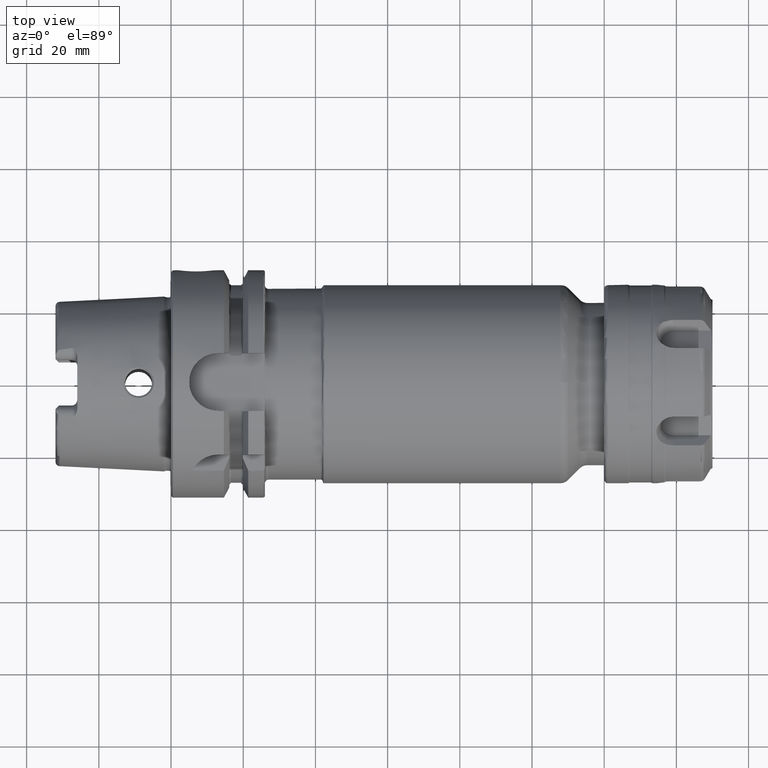
[diagram: clean part render]
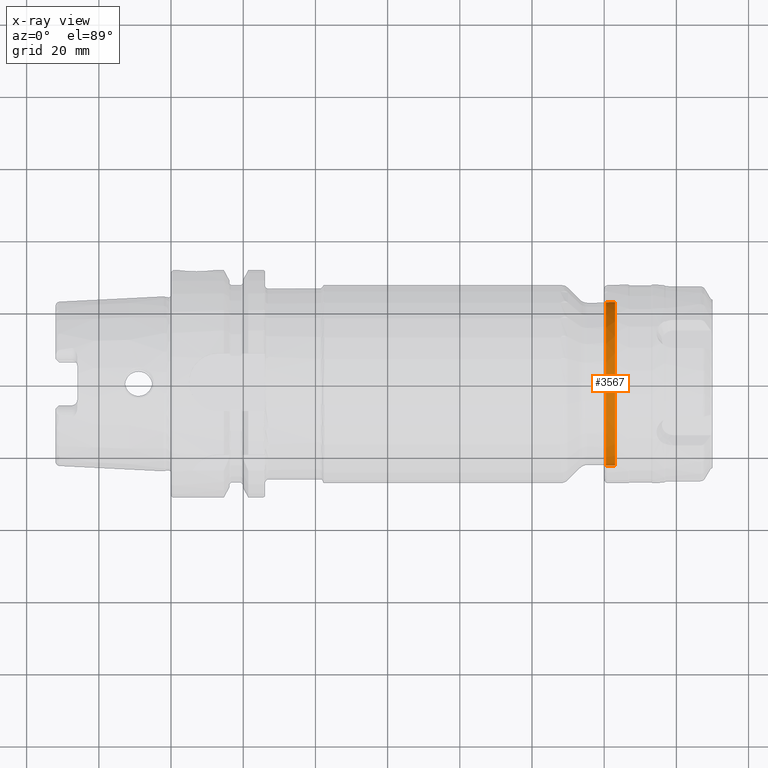
[diagram: x-ray — body ghosted, one internal face saturated and labeled with its STEP entity id]
A machine part, top view, then the same camera in x-ray: the body is ghosted and one INTERNAL B-rep face — a face not visible from any outside direction — is saturated and labeled: STEP entity #3567.
In plain terms, the highlighted cylindrical surface (bore or boss wall) has radius 22.7 mm, axis along (1, 0, 0).
Its self-contained STEP definition (entity closure, byte-faithful):
#354=CYLINDRICAL_SURFACE('',#4029,22.7);
#541=FACE_OUTER_BOUND('',#756,.T.);
#756=EDGE_LOOP('',(#3223,#3224,#3225,#3226,#3227));
#943=LINE('',#7471,#1111);
#1111=VECTOR('',#4992,22.7);
#1310=CIRCLE('',#4025,22.7);
#1311=CIRCLE('',#4026,22.7);
#1313=CIRCLE('',#4030,22.7);
#1672=VERTEX_POINT('',#7460);
#1673=VERTEX_POINT('',#7462);
#1675=VERTEX_POINT('',#7469);
#2199=EDGE_CURVE('',#1672,#1673,#1310,.T.);
#2200=EDGE_CURVE('',#1673,#1672,#1311,.T.);
#2202=EDGE_CURVE('',#1675,#1675,#1313,.T.);
#2203=EDGE_CURVE('',#1675,#1673,#943,.T.);
#3223=ORIENTED_EDGE('',*,*,#2202,.T.);
#3224=ORIENTED_EDGE('',*,*,#2203,.T.);
#3225=ORIENTED_EDGE('',*,*,#2199,.F.);
#3226=ORIENTED_EDGE('',*,*,#2200,.F.);
#3227=ORIENTED_EDGE('',*,*,#2203,.F.);
#3567=ADVANCED_FACE('',(#541),#354,.F.);
#4025=AXIS2_PLACEMENT_3D('',#7463,#4980,#4981);
#4026=AXIS2_PLACEMENT_3D('',#7464,#4982,#4983);
#4029=AXIS2_PLACEMENT_3D('',#7468,#4988,#4989);
#4030=AXIS2_PLACEMENT_3D('',#7470,#4990,#4991);
#4980=DIRECTION('center_axis',(1.,0.,0.));
#4981=DIRECTION('ref_axis',(0.,-1.,1.83697019872103E-16));
#4982=DIRECTION('center_axis',(1.,0.,0.));
#4983=DIRECTION('ref_axis',(0.,-1.,1.83697019872103E-16));
#4988=DIRECTION('center_axis',(1.,0.,0.));
#4989=DIRECTION('ref_axis',(0.,1.,0.));
#4990=DIRECTION('center_axis',(1.,0.,0.));
#4991=DIRECTION('ref_axis',(0.,0.,-1.));
#4992=DIRECTION('',(-1.,0.,0.));
#7460=CARTESIAN_POINT('',(0.5,-2.77994823406449E-15,22.7));
#7462=CARTESIAN_POINT('',(0.5,-22.7,-2.77994823406449E-15));
#7463=CARTESIAN_POINT('Origin',(0.5,0.,0.));
#7464=CARTESIAN_POINT('Origin',(0.5,0.,0.));
#7468=CARTESIAN_POINT('Origin',(1.5,0.,0.));
#7469=CARTESIAN_POINT('',(3.,-22.7,-2.77994823406449E-15));
#7470=CARTESIAN_POINT('Origin',(3.,0.,0.));
#7471=CARTESIAN_POINT('',(1.5,-22.7,-2.77994823406449E-15));